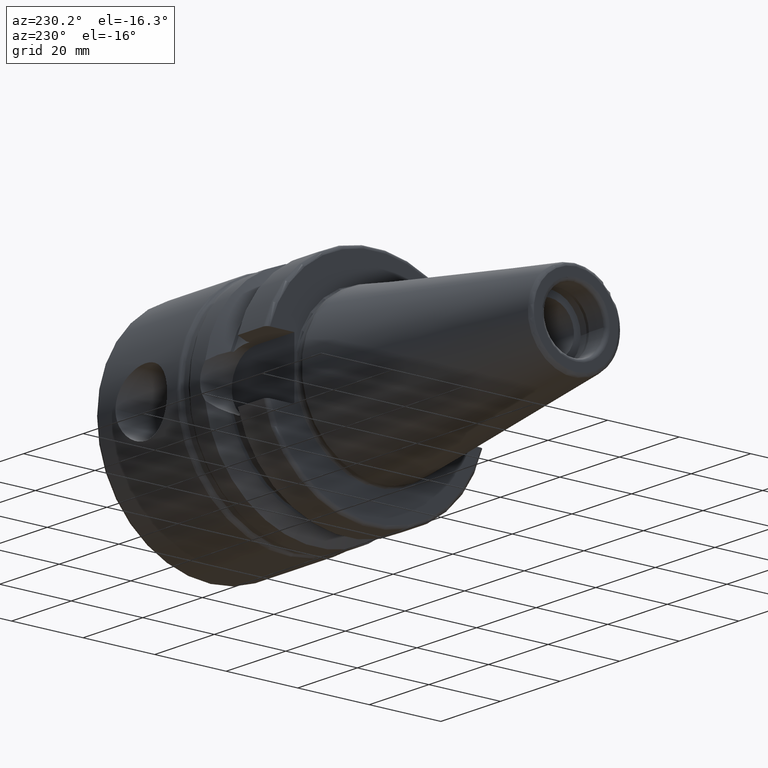
[diagram: clean part render]
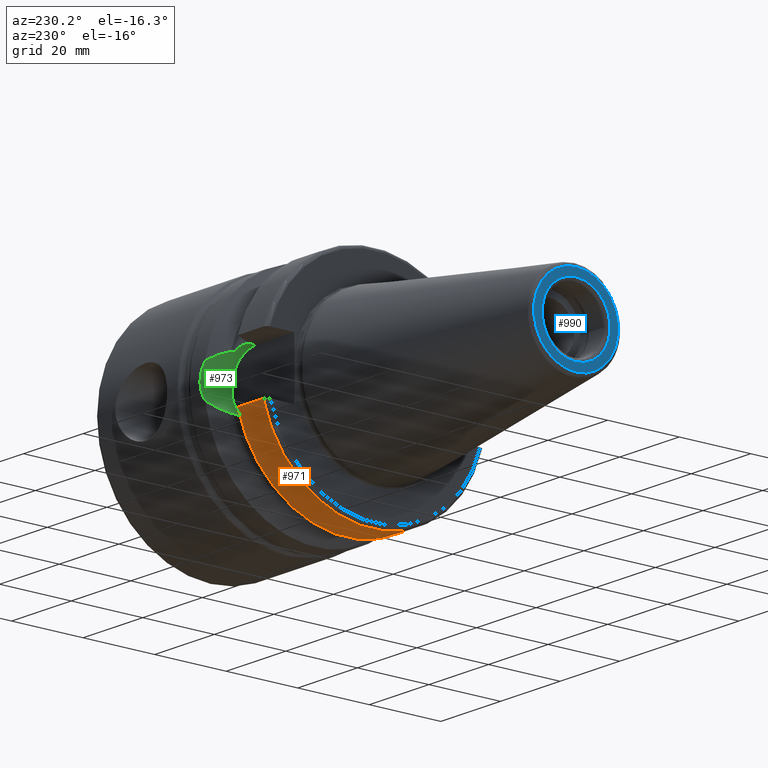
[diagram: same view with three faces highlighted in distinct colors, each labeled with its STEP entity id]
A machine part, auxiliary view with three faces highlighted in distinct colors.
Their STEP definitions:

[orange] entity #971 — the highlighted cylindrical surface (partial cylindrical patch) has radius 31.5 mm, axis along (1, 0, 0).
#103=CIRCLE('',#1099,31.5000000000001);
#104=CIRCLE('',#1101,31.5);
#177=FACE_OUTER_BOUND('',#241,.T.);
#241=EDGE_LOOP('',(#794,#795,#796,#797));
#293=LINE('',#1749,#341);
#300=LINE('',#1814,#348);
#341=VECTOR('',#1307,10.);
#348=VECTOR('',#1350,10.);
#440=VERTEX_POINT('',#1737);
#441=VERTEX_POINT('',#1748);
#452=VERTEX_POINT('',#1806);
#453=VERTEX_POINT('',#1812);
#556=EDGE_CURVE('',#441,#440,#293,.T.);
#575=EDGE_CURVE('',#441,#452,#103,.T.);
#577=EDGE_CURVE('',#440,#453,#104,.T.);
#578=EDGE_CURVE('',#453,#452,#300,.T.);
#794=ORIENTED_EDGE('',*,*,#556,.T.);
#795=ORIENTED_EDGE('',*,*,#577,.T.);
#796=ORIENTED_EDGE('',*,*,#578,.T.);
#797=ORIENTED_EDGE('',*,*,#575,.F.);
#932=CYLINDRICAL_SURFACE('',#1100,31.5);
#971=ADVANCED_FACE('',(#177),#932,.T.);
#1099=AXIS2_PLACEMENT_3D('',#1807,#1344,#1345);
#1100=AXIS2_PLACEMENT_3D('',#1811,#1346,#1347);
#1101=AXIS2_PLACEMENT_3D('',#1813,#1348,#1349);
#1307=DIRECTION('',(-1.,0.,0.));
#1344=DIRECTION('center_axis',(1.,0.,0.));
#1345=DIRECTION('ref_axis',(0.,0.,-1.));
#1346=DIRECTION('center_axis',(1.,0.,0.));
#1347=DIRECTION('ref_axis',(0.,1.,0.));
#1348=DIRECTION('center_axis',(1.,0.,0.));
#1349=DIRECTION('ref_axis',(0.,0.,-1.));
#1350=DIRECTION('',(1.,0.,0.));
#1737=CARTESIAN_POINT('',(2.99999999999999,-30.4540227227866,-8.05));
#1748=CARTESIAN_POINT('',(11.5690363073382,-30.4540227227866,-8.05));
#1749=CARTESIAN_POINT('',(7.28451815366907,-30.4540227227866,-8.05));
#1806=CARTESIAN_POINT('',(11.5690363073382,30.4540227227866,-8.05));
#1807=CARTESIAN_POINT('Origin',(11.5690363073382,0.,0.));
#1811=CARTESIAN_POINT('Origin',(7.28451815366907,0.,0.));
#1812=CARTESIAN_POINT('',(2.99999999999999,30.4540227227866,-8.05));
#1813=CARTESIAN_POINT('Origin',(2.99999999999999,0.,0.));
#1814=CARTESIAN_POINT('',(7.28451815366907,30.4540227227866,-8.05));

[blue] entity #990 — the highlighted planar face has unit normal (-1, 0, 0).
#37=FACE_BOUND('',#262,.T.);
#54=PLANE('',#1137);
#120=CIRCLE('',#1135,9.5);
#122=CIRCLE('',#1138,11.8227555970304);
#196=FACE_OUTER_BOUND('',#261,.T.);
#261=EDGE_LOOP('',(#887));
#262=EDGE_LOOP('',(#888));
#472=VERTEX_POINT('',#1915);
#473=VERTEX_POINT('',#1919);
#613=EDGE_CURVE('',#472,#472,#120,.T.);
#615=EDGE_CURVE('',#473,#473,#122,.T.);
#887=ORIENTED_EDGE('',*,*,#615,.F.);
#888=ORIENTED_EDGE('',*,*,#613,.T.);
#990=ADVANCED_FACE('',(#196,#37),#54,.T.);
#1135=AXIS2_PLACEMENT_3D('',#1916,#1431,#1432);
#1137=AXIS2_PLACEMENT_3D('',#1918,#1435,#1436);
#1138=AXIS2_PLACEMENT_3D('',#1920,#1437,#1438);
#1431=DIRECTION('center_axis',(1.,0.,0.));
#1432=DIRECTION('ref_axis',(0.,0.,-1.));
#1435=DIRECTION('center_axis',(-1.,0.,0.));
#1436=DIRECTION('ref_axis',(0.,0.,1.));
#1437=DIRECTION('center_axis',(1.,0.,0.));
#1438=DIRECTION('ref_axis',(0.,0.,-1.));
#1915=CARTESIAN_POINT('',(-65.4,-1.16341445918999E-15,9.5));
#1916=CARTESIAN_POINT('Origin',(-65.4,0.,0.));
#1918=CARTESIAN_POINT('Origin',(-65.4,11.8227555970304,0.));
#1919=CARTESIAN_POINT('',(-65.4,-1.44786997990048E-15,11.8227555970304));
#1920=CARTESIAN_POINT('Origin',(-65.4,0.,0.));

[green] entity #973 — the highlighted cylindrical surface (partial cylindrical patch) has radius 8.05 mm, axis along (0, 1, 0).
#106=CIRCLE('',#1105,8.05);
#179=FACE_OUTER_BOUND('',#243,.T.);
#243=EDGE_LOOP('',(#802,#803,#804,#805,#806,#807,#808,#809,#810,#811));
#297=LINE('',#1789,#345);
#301=LINE('',#1830,#349);
#302=LINE('',#1834,#350);
#303=LINE('',#1843,#351);
#345=VECTOR('',#1331,10.);
#349=VECTOR('',#1357,10.);
#350=VECTOR('',#1360,10.);
#351=VECTOR('',#1361,10.);
#378=B_SPLINE_CURVE_WITH_KNOTS('',3,(#1765,#1766,#1767,#1768,#1769,#1770,
#1771,#1772,#1773,#1774),.UNSPECIFIED.,.F.,.F.,(4,2,2,2,4),(3.19984995650548,
3.35166149968206,3.65633255521115,3.96100361074024,4.11281515391681),
 .UNSPECIFIED.);
#379=B_SPLINE_CURVE_WITH_KNOTS('',3,(#1780,#1781,#1782,#1783,#1784,#1785),
 .UNSPECIFIED.,.F.,.F.,(4,2,4),(1.4642102789956,1.54570476603972,2.04294020568399),
 .UNSPECIFIED.);
#380=B_SPLINE_CURVE_WITH_KNOTS('',3,(#1795,#1796,#1797,#1798,#1799,#1800),
 .UNSPECIFIED.,.F.,.F.,(4,2,4),(2.44288295924093,2.7482928065289,2.86149131778004),
 .UNSPECIFIED.);
#382=B_SPLINE_CURVE_WITH_KNOTS('',3,(#1836,#1837,#1838,#1839,#1840,#1841),
 .UNSPECIFIED.,.F.,.F.,(4,2,4),(-0.418608358539113,-0.305409847287967,0.),
 .UNSPECIFIED.);
#383=B_SPLINE_CURVE_WITH_KNOTS('',3,(#1844,#1845,#1846,#1847,#1848,#1849),
 .UNSPECIFIED.,.F.,.F.,(4,2,4),(3.12975744792547,3.62699288756974,3.70848737461386),
 .UNSPECIFIED.);
#445=VERTEX_POINT('',#1762);
#446=VERTEX_POINT('',#1764);
#447=VERTEX_POINT('',#1778);
#448=VERTEX_POINT('',#1787);
#450=VERTEX_POINT('',#1793);
#455=VERTEX_POINT('',#1829);
#456=VERTEX_POINT('',#1831);
#457=VERTEX_POINT('',#1833);
#458=VERTEX_POINT('',#1835);
#459=VERTEX_POINT('',#1842);
#563=EDGE_CURVE('',#445,#446,#378,.T.);
#567=EDGE_CURVE('',#447,#445,#379,.T.);
#569=EDGE_CURVE('',#448,#447,#297,.T.);
#572=EDGE_CURVE('',#450,#448,#380,.T.);
#581=EDGE_CURVE('',#455,#450,#301,.T.);
#582=EDGE_CURVE('',#456,#455,#106,.T.);
#583=EDGE_CURVE('',#456,#457,#302,.T.);
#584=EDGE_CURVE('',#458,#457,#382,.T.);
#585=EDGE_CURVE('',#459,#458,#303,.T.);
#586=EDGE_CURVE('',#446,#459,#383,.T.);
#802=ORIENTED_EDGE('',*,*,#572,.F.);
#803=ORIENTED_EDGE('',*,*,#581,.F.);
#804=ORIENTED_EDGE('',*,*,#582,.F.);
#805=ORIENTED_EDGE('',*,*,#583,.T.);
#806=ORIENTED_EDGE('',*,*,#584,.F.);
#807=ORIENTED_EDGE('',*,*,#585,.F.);
#808=ORIENTED_EDGE('',*,*,#586,.F.);
#809=ORIENTED_EDGE('',*,*,#563,.F.);
#810=ORIENTED_EDGE('',*,*,#567,.F.);
#811=ORIENTED_EDGE('',*,*,#569,.F.);
#933=CYLINDRICAL_SURFACE('',#1104,8.05);
#973=ADVANCED_FACE('',(#179),#933,.F.);
#1104=AXIS2_PLACEMENT_3D('',#1828,#1355,#1356);
#1105=AXIS2_PLACEMENT_3D('',#1832,#1358,#1359);
#1331=DIRECTION('',(0.,1.,0.));
#1355=DIRECTION('center_axis',(0.,1.,0.));
#1356=DIRECTION('ref_axis',(0.,0.,1.));
#1357=DIRECTION('',(0.,1.,0.));
#1358=DIRECTION('center_axis',(0.,1.,0.));
#1359=DIRECTION('ref_axis',(0.,0.,1.));
#1360=DIRECTION('',(0.,1.,0.));
#1361=DIRECTION('',(0.,-1.,0.));
#1762=CARTESIAN_POINT('',(21.6309636926618,31.1782420264945,-4.4907932637046));
#1764=CARTESIAN_POINT('',(21.6309636926618,31.1782420264945,4.4907932637046));
#1765=CARTESIAN_POINT('Ctrl Pts',(21.6309636926618,31.1782420264945,-4.4907932637046));
#1766=CARTESIAN_POINT('Ctrl Pts',(21.92482980253,31.2412125047166,-4.05360796141051));
#1767=CARTESIAN_POINT('Ctrl Pts',(22.1796133812044,31.2997625705025,-3.5806535819887));
#1768=CARTESIAN_POINT('Ctrl Pts',(22.7961189876535,31.445974204441,-2.09580170425552));
#1769=CARTESIAN_POINT('Ctrl Pts',(23.,31.5,-1.01557018509698));
#1770=CARTESIAN_POINT('Ctrl Pts',(23.,31.5,1.01557018509698));
#1771=CARTESIAN_POINT('Ctrl Pts',(22.7961189876535,31.445974204441,2.09580170425552));
#1772=CARTESIAN_POINT('Ctrl Pts',(22.1796133812044,31.2997625705025,3.58065358198869));
#1773=CARTESIAN_POINT('Ctrl Pts',(21.92482980253,31.2412125047166,4.05360796141051));
#1774=CARTESIAN_POINT('Ctrl Pts',(21.6309636926618,31.1782420264945,4.4907932637046));
#1778=CARTESIAN_POINT('',(19.1,26.201311395455,-6.89782574439221));
#1780=CARTESIAN_POINT('Ctrl Pts',(19.1,26.201311395455,-6.89782574439221));
#1781=CARTESIAN_POINT('Ctrl Pts',(19.2210929544554,26.438473693351,-6.82497151762395));
#1782=CARTESIAN_POINT('Ctrl Pts',(19.3406963650697,26.6728819297428,-6.74867108656039));
#1783=CARTESIAN_POINT('Ctrl Pts',(20.1784155384866,28.3157123387484,-6.18231368976925));
#1784=CARTESIAN_POINT('Ctrl Pts',(20.9728756148303,29.8797957262939,-5.46983244373115));
#1785=CARTESIAN_POINT('Ctrl Pts',(21.6309636926618,31.1782420264945,-4.4907932637046));
#1787=CARTESIAN_POINT('',(19.1,25.3793222919762,-6.89782574439221));
#1789=CARTESIAN_POINT('',(19.1,22.6,-6.89782574439221));
#1793=CARTESIAN_POINT('',(14.95,25.0377215417058,-8.05));
#1795=CARTESIAN_POINT('Ctrl Pts',(14.95,25.0377215417058,-8.05));
#1796=CARTESIAN_POINT('Ctrl Pts',(15.9680328242932,25.0377215417058,-8.05));
#1797=CARTESIAN_POINT('Ctrl Pts',(17.0490724969254,25.1063150193149,-7.84520188991776));
#1798=CARTESIAN_POINT('Ctrl Pts',(18.4068260684762,25.2726009715968,-7.28086186600679));
#1799=CARTESIAN_POINT('Ctrl Pts',(18.7623374744972,25.3241080721198,-7.10097664045187));
#1800=CARTESIAN_POINT('Ctrl Pts',(19.1,25.3793222919762,-6.89782574439221));
#1828=CARTESIAN_POINT('Origin',(14.95,22.6,0.));
#1829=CARTESIAN_POINT('',(14.95,22.6,-8.05));
#1830=CARTESIAN_POINT('',(14.95,22.6,-8.05));
#1831=CARTESIAN_POINT('',(14.95,22.6,8.05));
#1832=CARTESIAN_POINT('Origin',(14.95,22.6,0.));
#1833=CARTESIAN_POINT('',(14.95,25.0377215417058,8.05));
#1834=CARTESIAN_POINT('',(14.95,22.6,8.05));
#1835=CARTESIAN_POINT('',(19.1,25.3793222919762,6.89782574439221));
#1836=CARTESIAN_POINT('Ctrl Pts',(19.1,25.3793222919762,6.89782574439221));
#1837=CARTESIAN_POINT('Ctrl Pts',(18.7623374744972,25.3241080721198,7.10097664045187));
#1838=CARTESIAN_POINT('Ctrl Pts',(18.4068260684762,25.2726009715968,7.28086186600679));
#1839=CARTESIAN_POINT('Ctrl Pts',(17.0490724969254,25.1063150193149,7.84520188991776));
#1840=CARTESIAN_POINT('Ctrl Pts',(15.9680328242932,25.0377215417058,8.05));
#1841=CARTESIAN_POINT('Ctrl Pts',(14.95,25.0377215417058,8.05));
#1842=CARTESIAN_POINT('',(19.1,26.201311395455,6.89782574439221));
#1843=CARTESIAN_POINT('',(19.1,22.6,6.89782574439221));
#1844=CARTESIAN_POINT('Ctrl Pts',(21.6309636926618,31.1782420264945,4.4907932637046));
#1845=CARTESIAN_POINT('Ctrl Pts',(20.9728756148303,29.8797957262939,5.46983244373114));
#1846=CARTESIAN_POINT('Ctrl Pts',(20.1784155384866,28.3157123387484,6.18231368976924));
#1847=CARTESIAN_POINT('Ctrl Pts',(19.3406963650697,26.6728819297428,6.74867108656039));
#1848=CARTESIAN_POINT('Ctrl Pts',(19.2210929544554,26.438473693351,6.82497151762395));
#1849=CARTESIAN_POINT('Ctrl Pts',(19.1,26.201311395455,6.89782574439221));